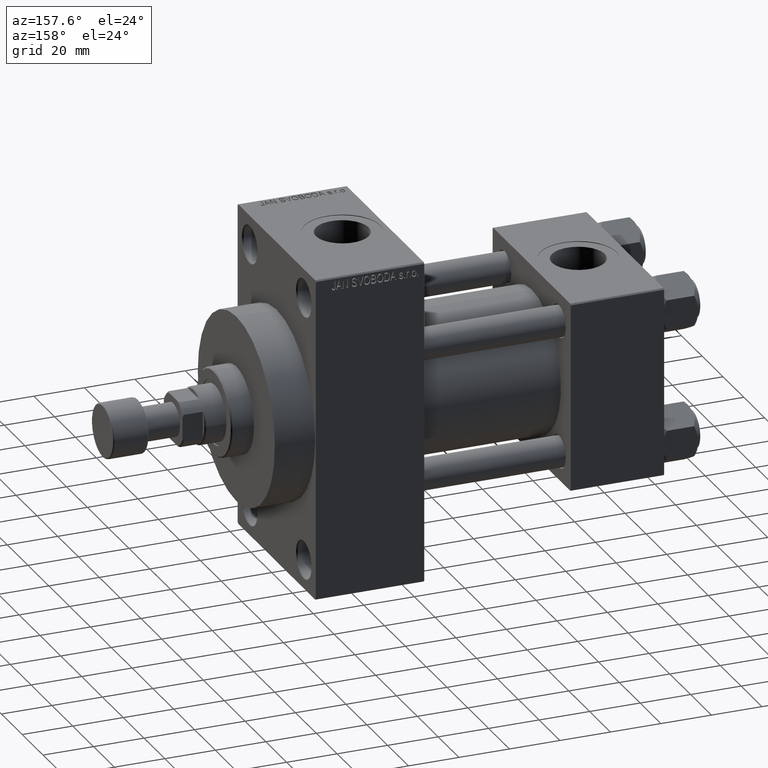
[diagram: clean part render]
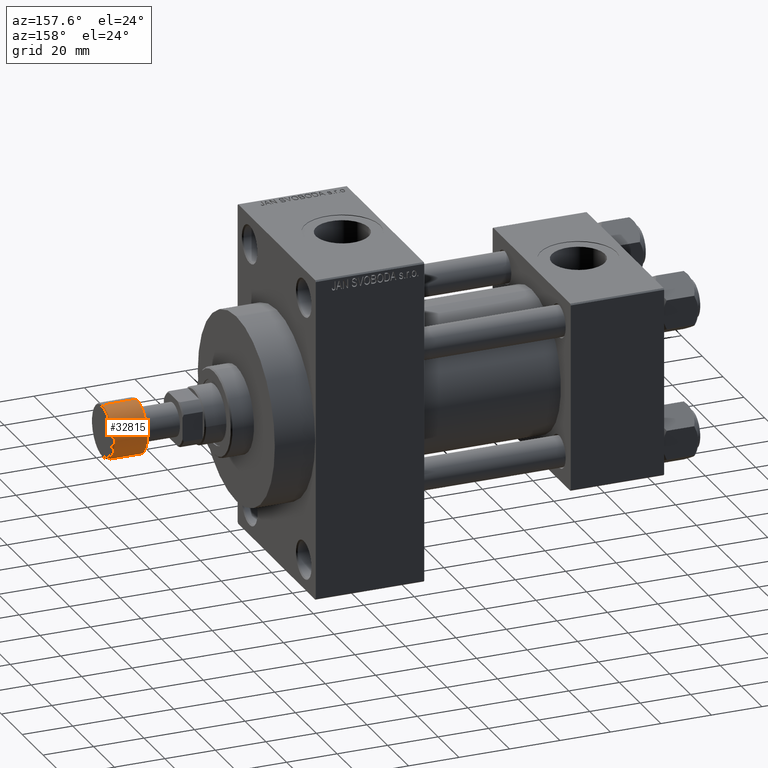
[diagram: same view with one face highlighted and labeled with its STEP entity id]
A machine part, auxiliary view. The second image highlights one B-rep face of the part: STEP entity #32815.
In plain terms, the highlighted cylindrical surface (edge-blend (fillet) strip) has radius 10.5 mm, axis along (1, 0, 0).
Its self-contained STEP definition (entity closure, byte-faithful):
#2212 = CYLINDRICAL_SURFACE ( 'NONE', #20505, 10.50000000000000000 ) ;
#3208 = LINE ( 'NONE', #11159, #25272 ) ;
#4104 = LINE ( 'NONE', #36597, #42827 ) ;
#5559 = EDGE_CURVE ( 'NONE', #44272, #45676, #3208, .T. ) ;
#7549 = DIRECTION ( 'NONE',  ( 0.000000000000000000, 0.000000000000000000, 1.000000000000000000 ) ) ;
#7707 = CARTESIAN_POINT ( 'NONE',  ( -10.50000000000000000, 1.285879139104720831E-15, -13.50000000000000000 ) ) ;
#11159 = CARTESIAN_POINT ( 'NONE',  ( -10.50000000000000000, 1.285879139104720831E-15, -14.00000000000000000 ) ) ;
#11477 = ORIENTED_EDGE ( 'NONE', *, *, #42434, .T. ) ;
#12099 = DIRECTION ( 'NONE',  ( 0.000000000000000000, 0.000000000000000000, 1.000000000000000000 ) ) ;
#14909 = DIRECTION ( 'NONE',  ( 1.000000000000000000, 0.000000000000000000, 0.000000000000000000 ) ) ;
#15609 = CARTESIAN_POINT ( 'NONE',  ( 0.000000000000000000, 0.000000000000000000, -0.5000000000000004441 ) ) ;
#15628 = DIRECTION ( 'NONE',  ( 0.000000000000000000, 0.000000000000000000, 1.000000000000000000 ) ) ;
#15699 = CARTESIAN_POINT ( 'NONE',  ( 0.000000000000000000, 0.000000000000000000, -13.50000000000000000 ) ) ;
#16426 = DIRECTION ( 'NONE',  ( 1.000000000000000000, 0.000000000000000000, 0.000000000000000000 ) ) ;
#16771 = CIRCLE ( 'NONE', #32178, 10.50000000000000000 ) ;
#16781 = VERTEX_POINT ( 'NONE', #23277 ) ;
#20039 = DIRECTION ( 'NONE',  ( 1.000000000000000000, 0.000000000000000000, 0.000000000000000000 ) ) ;
#20505 = AXIS2_PLACEMENT_3D ( 'NONE', #27743, #42651, #16426 ) ;
#23143 = ORIENTED_EDGE ( 'NONE', *, *, #5559, .T. ) ;
#23277 = CARTESIAN_POINT ( 'NONE',  ( 10.50000000000000000, 0.000000000000000000, -13.50000000000000000 ) ) ;
#23326 = ORIENTED_EDGE ( 'NONE', *, *, #30609, .T. ) ;
#23859 = VERTEX_POINT ( 'NONE', #43722 ) ;
#25272 = VECTOR ( 'NONE', #7549, 1000.000000000000000 ) ;
#27743 = CARTESIAN_POINT ( 'NONE',  ( 0.000000000000000000, 0.000000000000000000, -14.00000000000000000 ) ) ;
#28128 = ORIENTED_EDGE ( 'NONE', *, *, #39028, .F. ) ;
#28214 = FACE_OUTER_BOUND ( 'NONE', #42590, .T. ) ;
#30609 = EDGE_CURVE ( 'NONE', #16781, #44272, #43495, .T. ) ;
#32178 = AXIS2_PLACEMENT_3D ( 'NONE', #15609, #33908, #14909 ) ;
#32815 = ADVANCED_FACE ( 'NONE', ( #28214 ), #2212, .T. ) ;
#33908 = DIRECTION ( 'NONE',  ( -0.000000000000000000, -0.000000000000000000, -1.000000000000000000 ) ) ;
#36597 = CARTESIAN_POINT ( 'NONE',  ( 10.50000000000000000, 0.000000000000000000, -14.00000000000000000 ) ) ;
#39028 = EDGE_CURVE ( 'NONE', #16781, #23859, #4104, .T. ) ;
#41202 = AXIS2_PLACEMENT_3D ( 'NONE', #15699, #12099, #20039 ) ;
#42434 = EDGE_CURVE ( 'NONE', #45676, #23859, #16771, .T. ) ;
#42590 = EDGE_LOOP ( 'NONE', ( #23326, #23143, #11477, #28128 ) ) ;
#42651 = DIRECTION ( 'NONE',  ( 0.000000000000000000, 0.000000000000000000, 1.000000000000000000 ) ) ;
#42680 = CARTESIAN_POINT ( 'NONE',  ( -10.50000000000000000, 1.285879139104720831E-15, -0.5000000000000004441 ) ) ;
#42827 = VECTOR ( 'NONE', #15628, 1000.000000000000000 ) ;
#43495 = CIRCLE ( 'NONE', #41202, 10.50000000000000000 ) ;
#43722 = CARTESIAN_POINT ( 'NONE',  ( 10.50000000000000000, 0.000000000000000000, -0.5000000000000004441 ) ) ;
#44272 = VERTEX_POINT ( 'NONE', #7707 ) ;
#45676 = VERTEX_POINT ( 'NONE', #42680 ) ;